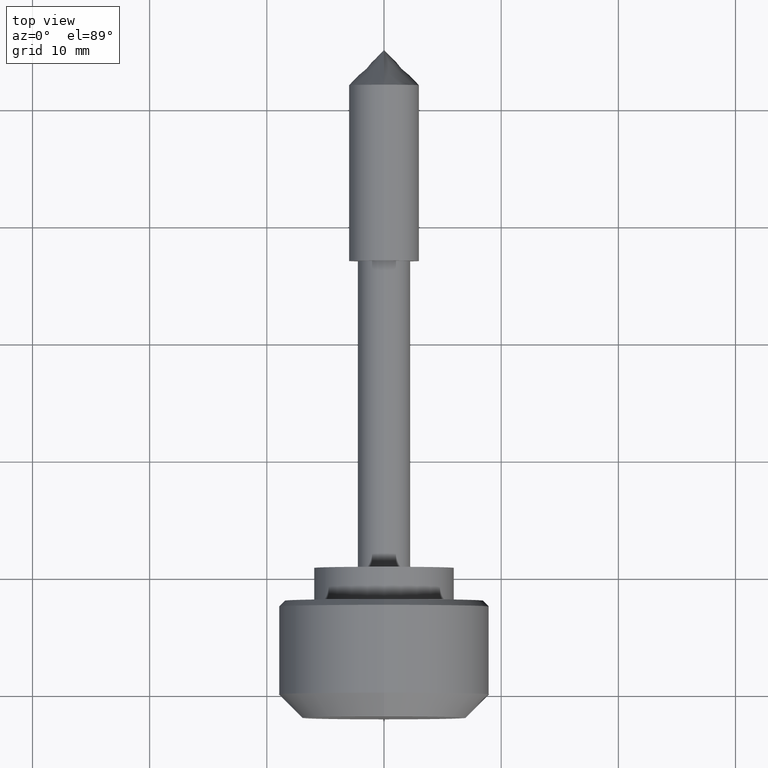
[diagram: clean part render]
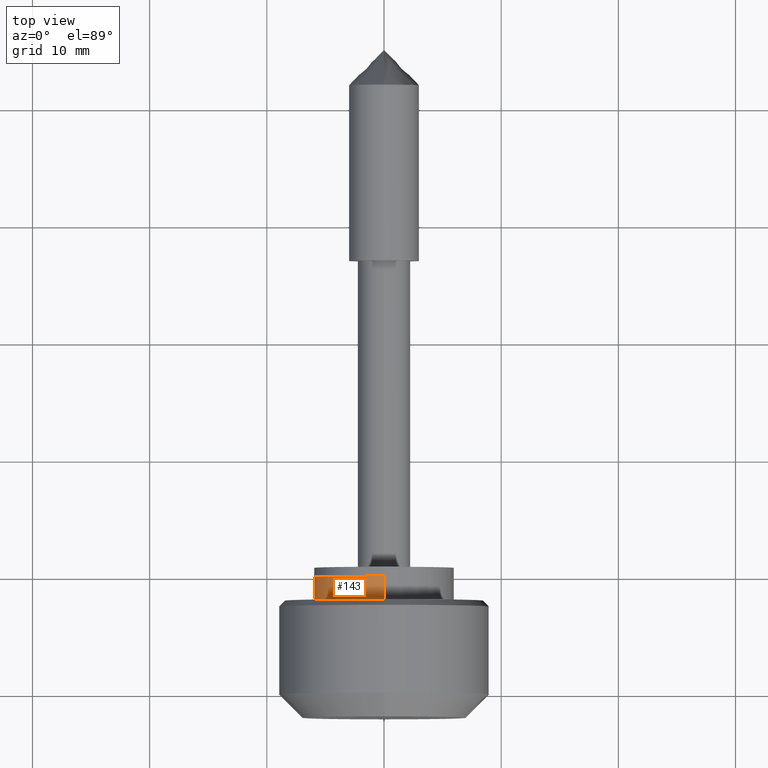
[diagram: same view with one face highlighted and labeled with its STEP entity id]
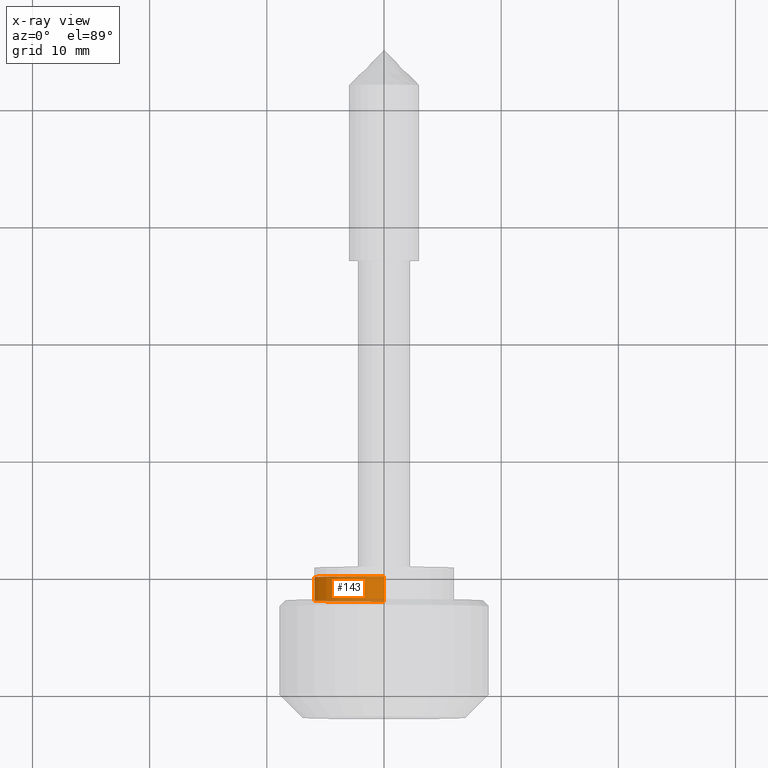
[diagram: x-ray of the same camera — body ghosted, the highlighted face saturated]
A machine part, top view. The second image highlights one B-rep face of the part: STEP entity #143.
The next image is the same camera in x-ray: the body ghosted, the highlighted face saturated — about 7% of this face is hidden behind the body in this view.
In plain terms, the highlighted cylindrical surface (partial cylindrical patch) has radius 6 mm, axis along (0, -1, -0).
Its self-contained STEP definition (entity closure, byte-faithful):
#143=ADVANCED_FACE('',(#470),#469,.T.);
#469=CYLINDRICAL_SURFACE('',#754,6.00000000000E+00);
#470=FACE_OUTER_BOUND('',#755,.T.);
#751=CARTESIAN_POINT('',(-1.00000000000E+03,0.00000000000E+00,0.00000000000E+00));
#752=DIRECTION('',(-1.00000000000E+00,-0.00000000000E+00,-0.00000000000E+00));
#753=DIRECTION('',(0.00000000000E+00,1.22464679915E-16,-1.00000000000E+00));
#754=AXIS2_PLACEMENT_3D('',#751,#752,#753);
#755=EDGE_LOOP('',(#980,#981,#982,#983));
#980=ORIENTED_EDGE('',*,*,#1089,.F.);
#981=ORIENTED_EDGE('',*,*,#1114,.T.);
#982=ORIENTED_EDGE('',*,*,#1087,.F.);
#983=ORIENTED_EDGE('',*,*,#1115,.F.);
#1087=EDGE_CURVE('',#1505,#1504,#1512,.T.);
#1089=EDGE_CURVE('',#1519,#1518,#1526,.T.);
#1114=EDGE_CURVE('',#1519,#1504,#1694,.T.);
#1115=EDGE_CURVE('',#1518,#1505,#1700,.T.);
#1504=VERTEX_POINT('',#2021);
#1505=VERTEX_POINT('',#2022);
#1512=CIRCLE('',#2030,6.00000000000E+00);
#1518=VERTEX_POINT('',#2031);
#1519=VERTEX_POINT('',#2032);
#1526=CIRCLE('',#2040,6.00000000000E+00);
#1694=(BOUNDED_CURVE() B_SPLINE_CURVE(1,(#2147,#2148),.UNSPECIFIED.,.F.,.F.) B_SPLINE_CURVE_WITH_KNOTS((2,2),(8.33333134656E-02,9.16666653270E-01),.UNSPECIFIED.) CURVE() GEOMETRIC_REPRESENTATION_ITEM() RATIONAL_B_SPLINE_CURVE((1.00000000000E+00,1.00000000000E+00)) REPRESENTATION_ITEM('') );
#1700=(BOUNDED_CURVE() B_SPLINE_CURVE(1,(#2149,#2150),.UNSPECIFIED.,.F.,.F.) B_SPLINE_CURVE_WITH_KNOTS((2,2),(8.33333333333E-02,9.16666666667E-01),.UNSPECIFIED.) CURVE() GEOMETRIC_REPRESENTATION_ITEM() RATIONAL_B_SPLINE_CURVE((7.50000000000E-01,7.50000000000E-01)) REPRESENTATION_ITEM('') );
#2021=CARTESIAN_POINT('',(-2.00000000000E+00,0.00000000000E+00,-6.00000000000E+00));
#2022=CARTESIAN_POINT('',(-2.00000000000E+00,1.18423789293E-15,6.00000000000E+00));
#2027=CARTESIAN_POINT('',(-2.00000000000E+00,0.00000000000E+00,0.00000000000E+00));
#2028=DIRECTION('',(-1.00000000000E+00,0.00000000000E+00,-0.00000000000E+00));
#2029=DIRECTION('',(0.00000000000E+00,-1.22460635382E-16,-1.00000000000E+00));
#2030=AXIS2_PLACEMENT_3D('',#2027,#2028,#2029);
#2031=CARTESIAN_POINT('',(0.00000000000E+00,0.00000000000E+00,6.00000000000E+00));
#2032=CARTESIAN_POINT('',(0.00000000000E+00,1.18423789293E-15,-6.00000000000E+00));
#2037=CARTESIAN_POINT('',(0.00000000000E+00,0.00000000000E+00,0.00000000000E+00));
#2038=DIRECTION('',(1.00000000000E+00,0.00000000000E+00,-0.00000000000E+00));
#2039=DIRECTION('',(0.00000000000E+00,-1.22460635382E-16,1.00000000000E+00));
#2040=AXIS2_PLACEMENT_3D('',#2037,#2038,#2039);
#2147=CARTESIAN_POINT('',(4.76825442464E-08,7.34788079488E-16,-6.00000000000E+00));
#2148=CARTESIAN_POINT('',(-1.99999996785E+00,7.34788079488E-16,-6.00000000000E+00));
#2149=CARTESIAN_POINT('',(3.70074341542E-17,0.00000000000E+00,6.00000000000E+00));
#2150=CARTESIAN_POINT('',(-2.00000000000E+00,0.00000000000E+00,6.00000000000E+00));